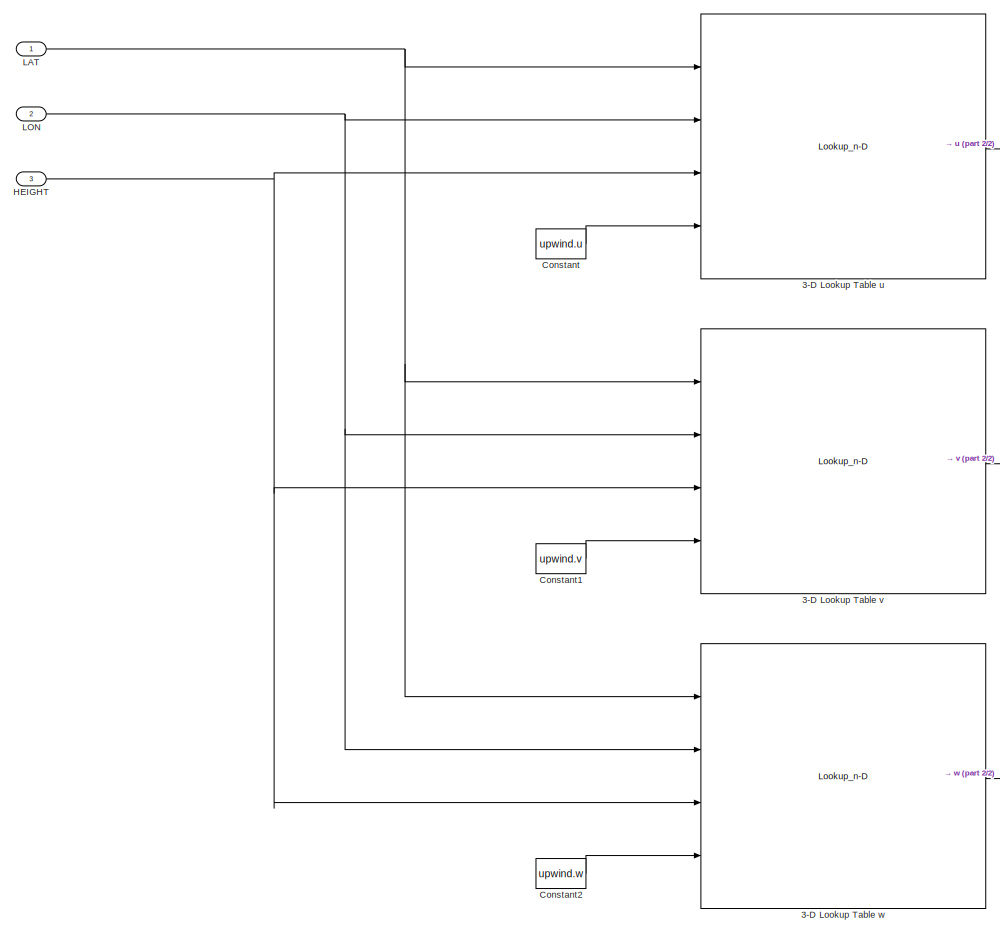
[diagram: root canvas - part 1/2, left side, full height]
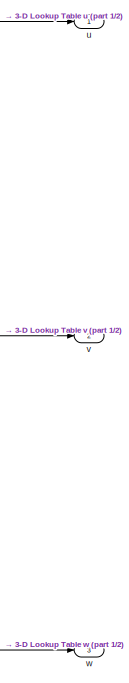
[diagram: root canvas - part 2/2, middle right region]
MODEL slx_21116137d1ee
KIND model
CONFIG AbsTol = auto
CONFIG EnableMultiTasking = off
CONFIG FixedStep = auto
CONFIG MaxStep = auto
CONFIG MinStep = auto
CONFIG RelTol = 1e-3
CONFIG SampleTimeConstraint = Unconstrained
CONFIG SolverName = VariableStepAuto
CONFIG StartTime = 0.0
CONFIG StopTime = 10.0
BLOCK [Lookup_n-D] 3-D Lookup Table u
  BreakpointsForDimension1 = linspace(upwind_lat_start, upwind_lat_end, 100)
  BreakpointsForDimension2 = linspace(upwind_lon_start, upwind_lon_end, 100)
  BreakpointsForDimension3 = linspace(upwind_height_start, upwind_height_end, 100)
  ExtrapMethod = Clip
  InputPortMap = u0,u1,u2,p221
  InternalRulePriority = Speed
  NumberOfTableDimensions = 3
  Ports = [4, 1]
  RndMeth = Simplest
  Table = reshape(repmat([4 5 6;16 19 20;10 18 23],1,2),[3,3,2])
  TableSource = Input port
BLOCK [Lookup_n-D] 3-D Lookup Table v
  BreakpointsForDimension1 = linspace(upwind_lat_start, upwind_lat_end, 100)
  BreakpointsForDimension2 = linspace(upwind_lon_start, upwind_lon_end, 100)
  BreakpointsForDimension3 = linspace(upwind_height_start, upwind_height_end, 100)
  ExtrapMethod = Clip
  InputPortMap = u0,u1,u2,p221
  InternalRulePriority = Speed
  NumberOfTableDimensions = 3
  Ports = [4, 1]
  RndMeth = Simplest
  Table = reshape(repmat([4 5 6;16 19 20;10 18 23],1,2),[3,3,2])
  TableSource = Input port
BLOCK [Lookup_n-D] 3-D Lookup Table w
  BreakpointsForDimension1 = linspace(upwind_lat_start, upwind_lat_end, 100)
  BreakpointsForDimension2 = linspace(upwind_lon_start, upwind_lon_end, 100)
  BreakpointsForDimension3 = linspace(upwind_height_start, upwind_height_end, 100)
  ExtrapMethod = Clip
  InputPortMap = u0,u1,u2,p221
  InternalRulePriority = Speed
  NumberOfTableDimensions = 3
  Ports = [4, 1]
  RndMeth = Simplest
  Table = reshape(repmat([4 5 6;16 19 20;10 18 23],1,2),[3,3,2])
  TableSource = Input port
BLOCK [Constant] Constant
  Value = upwind.u
BLOCK [Constant] Constant1
  Value = upwind.v
BLOCK [Constant] Constant2
  Value = upwind.w
BLOCK [Inport] HEIGHT
  Port = 3
BLOCK [Inport] LAT
BLOCK [Inport] LON
  Port = 2
BLOCK [Outport] u
BLOCK [Outport] v
  Port = 2
BLOCK [Outport] w
  Port = 3
LINE 3-D Lookup Table u:1 -> u:1
LINE 3-D Lookup Table v:1 -> v:1
LINE 3-D Lookup Table w:1 -> w:1
LINE Constant1:1 -> 3-D Lookup Table v:4
LINE Constant2:1 -> 3-D Lookup Table w:4
LINE Constant:1 -> 3-D Lookup Table u:4
NET HEIGHT:1 -> 3-D Lookup Table u:3, 3-D Lookup Table v:3, 3-D Lookup Table w:3
NET LAT:1 -> 3-D Lookup Table u:1, 3-D Lookup Table v:1, 3-D Lookup Table w:1
NET LON:1 -> 3-D Lookup Table u:2, 3-D Lookup Table v:2, 3-D Lookup Table w:2
note: NET lines group one-source signal fan-out (src -> all destinations, sorted); 1:1 wires keep LINE
